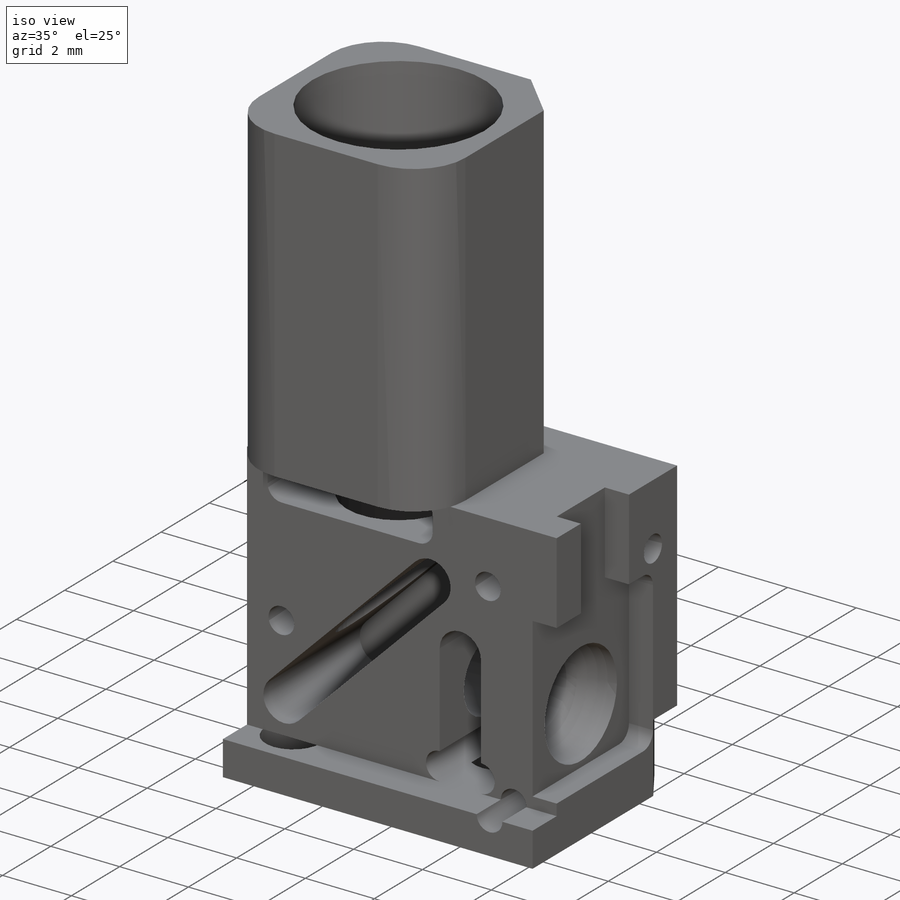
[diagram: iso view]
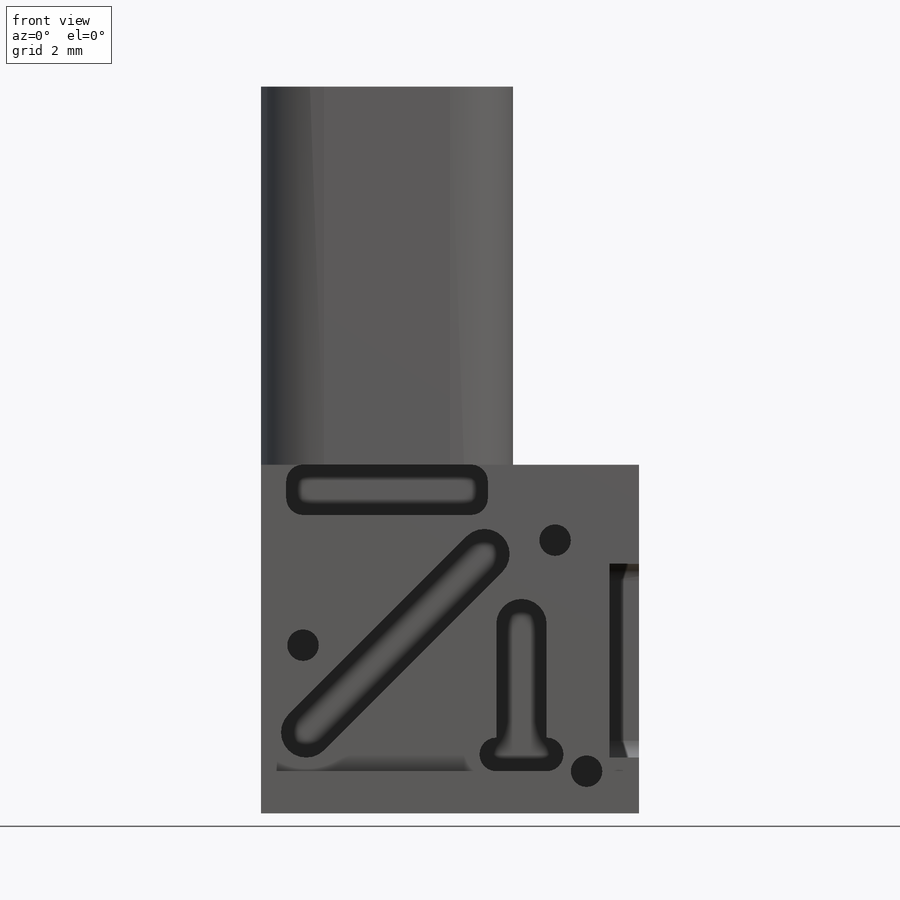
[diagram: front view]
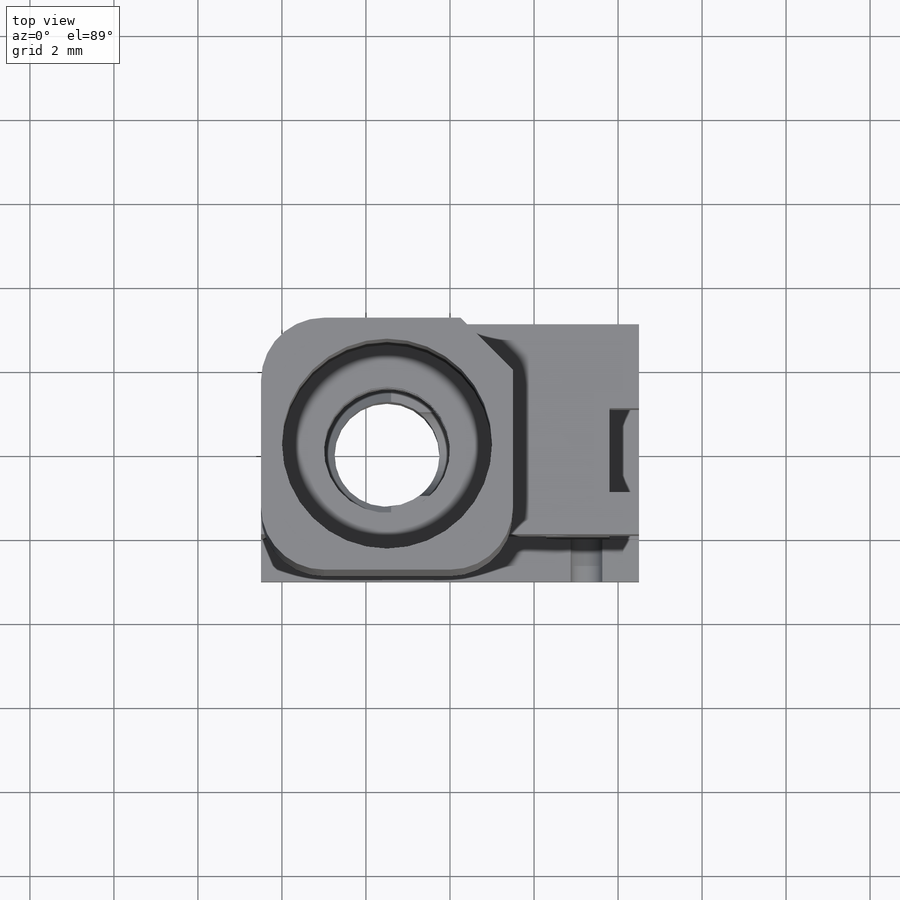
[diagram: top view]
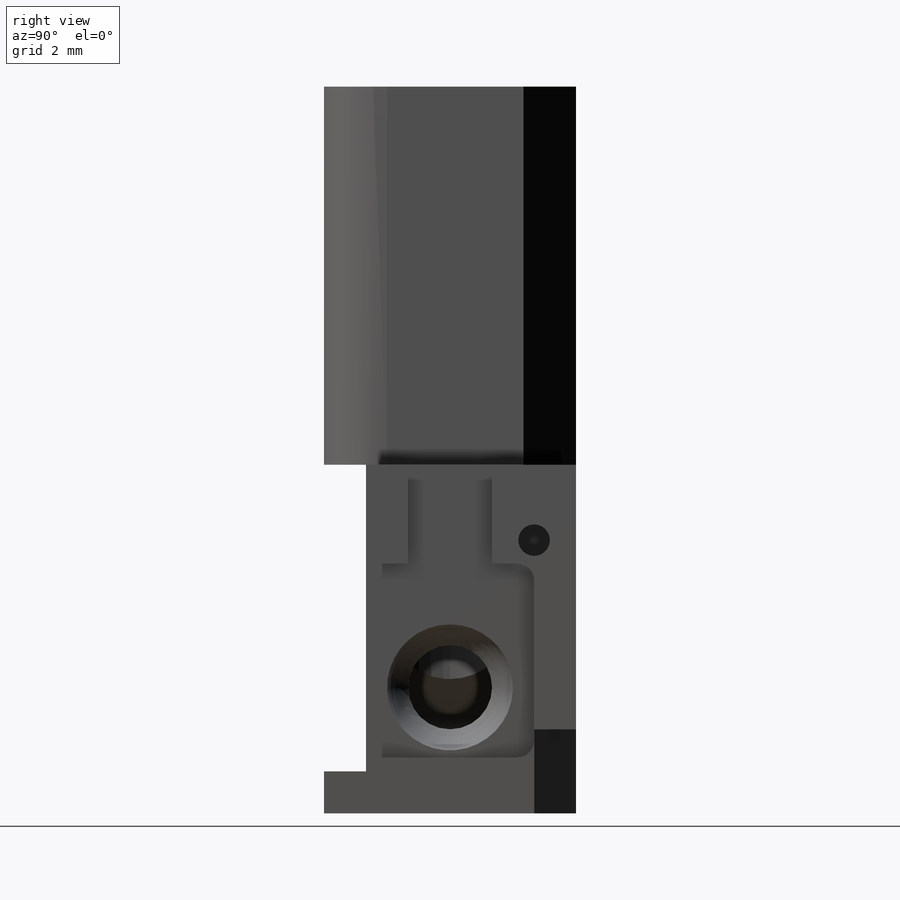
[diagram: right view]
SOLIDWORKS PART (.sldprt)
format: sldprt  version: not decoded by parser v0  size: 625,152 bytes
history: native  units: mm
features: sketch x17, cut_extrude x13, extrude x2, material x1, fillet x1, cut_revolve x1 (+11 scaffold rows collapsed)
feature tree (46):
  scaffold x11  (default folders/planes/origin — collapsed)
  material  "Material <not specified>"
  sketch  "Sketch1"  dims[D1=6.0mm D2=9.0mm]
  extrude  "Main Body Ext"  Depth=8.3mm
  sketch  "Sketch8"  dims[c1.D1=6.0mm c1.D2=5.0mm c1.D3=2.0mm c1.D4=3.0mm c2.D3=2.0mm c2.D2=6.0mm c3.D3=1.25mm]
  extrude  "Emission Path Ext"  Depth=9mm
  sketch  "Sketch3"  dims[c1.D1=~2.670352mm c1.D2=2.5mm c2.D1=3.0mm]
  cut_extrude  "Emission and Grin Cut"  [1 undecoded]
  sketch  "Sketch4"  dims[D1=2.0mm D2=3.0mm]
  cut_extrude  "Drum Lens Cut"  Depth=2mm
  sketch  "Sketch5"  dims[c1.D1=1.0mm c1.D2=1.0mm c1.D3=~2.834297mm c2.D2=0.5mm]
  cut_extrude  "FilterSet Cut1"  Depth=1mm
  sketch  "Sketch6"  dims[c1.D10=0.6mm c1.D5=0.5mm c1.D8=0.4mm c1.D11=0.4mm c1.D12=0.4mm c1.D1=1.0mm c1.D2=1.0mm c1.D3=0.5mm c2.D1=~2.691567mm c3.D1=90.0deg c4.D1=~2.713456mm c5.D1=45.0deg c5.D2=1.2mm c5.D3=1.2mm c5.D4=1.2mm c5.D5=0.8mm c6.D1=~3.122386mm c7.D1=45.0deg c7.D6=4.0mm c7.D7=3.0mm c7.D8=3.0mm c7.D9=3.0mm c7.D10=3.6mm c7.D11=3.2mm c8.D10=2.0mm c8.D6=5.0mm c8.D7=4.2mm c8.D8=4.0mm c9.D10=1.2mm c9.D7=4.0mm c9.D6=4.8mm c9.D2=4.8mm c10.D2=45.0deg c10.D5=1.8mm c10.D9=3.0mm c10.D1=1.9mm c10.D3=4.0mm c11.D5=0.6mm c11.D3=3.5mm c11.D10=~1.448528mm c11.D1=1.2mm c12.D5=2.2mm c12.D10=2.0mm c12.D2=4.8mm c13.D2=45.0deg c13.D10=0.5mm c13.D9=3.0mm c13.D13=1.2mm c13.D6=2.0mm c13.D14=3.0mm c13.D15=6.0mm]
  cut_extrude  "FilterSet Cut2"  Depth=1mm
  sketch  "Sketch10"  dims[D1=5.0mm]
  cut_extrude  "Emission Lens Cut"  Depth=0.5mm
  sketch  "Sketch12"  dims[c1.D2=2.0mm c1.D3=2.0mm c1.D1=3.2mm c2.D2=1.15mm c2.D3=4.61mm c2.D4=0.4mm c2.D5=~3.671452mm c3.D2=4.61mm c3.D3=1.67mm]
  sketch  "Sketch15"  dims[c1.D4=1.59mm c1.D1=3.75mm c1.D2=3.0mm c1.D3=2.0mm c2.D4=2.0mm c2.D5=2.0mm c2.D3=1.75mm]
  cut_extrude  "Magnets Cut"  Depth=1mm
  sketch  "Sketch18"  dims[c1.D1=0.75mm c1.D2=0.75mm c1.D3=0.75mm c1.D4=0.75mm c1.D5=0.75mm c2.D2=0.75mm c2.D4=0.75mm c2.D6=0.75mm c3.D2=1.0mm c3.D3=1.0mm c3.D4=1.0mm c3.D5=1.0mm c4.D2=1.0mm c4.D3=1.0mm c4.D4=1.0mm c4.D5=3.0mm c5.D2=1.0mm c5.D4=2.0mm c5.D6=1.0mm c5.D7=7.75mm c5.D3=1.8mm]
  cut_extrude  "Screw Holes Cut"  Depth=3mm
  fillet  "External Fillet 1"  Radius=1.5mm
  sketch  "Sketch14"  dims[D1=1.1938mm]
  sketch  "Sketch28"  dims[D1=3.0mm]
  cut_extrude  "Cut-Extrude8"  Depth=4mm
  cut_extrude  "Cut-Extrude9"  Depth=2mm
  cut_extrude  "Cut-Extrude10"  Depth=0.7mm
  sketch  "Sketch29"  dims[c1.D1=0.75mm c1.D2=0.75mm c1.D3=0.75mm c2.D2=1.0mm c2.D3=1.8mm]
  cut_extrude  "Cut-Extrude11"  Depth=2.5mm
  sketch  "Sketch31"  dims[D1=3.2mm]
  sketch  "Sketch32"  dims[D1=1.0mm D2=2.0mm]
  cut_extrude  "Cut-Extrude14"  [1 undecoded]
  sketch  "Sketch33"  dims[D1=1.5mm D2=1.5mm]
  cut_revolve  "Cut-Revolve1"  Angle=360deg
  sketch  "Sketch36"  dims[D1=1.5mm D2=1.5mm]
  cut_extrude  "Cut-Extrude16"  [1 undecoded]
decode coverage: 31 of 34 modeling features carry decoded parameters
note: ~ marks probable driven/reference dimensions
note: 3 parameter values undecoded
summary: no parameter record found for 3 features
note: suppression state not decoded; provenance and decode notes live in map.json
